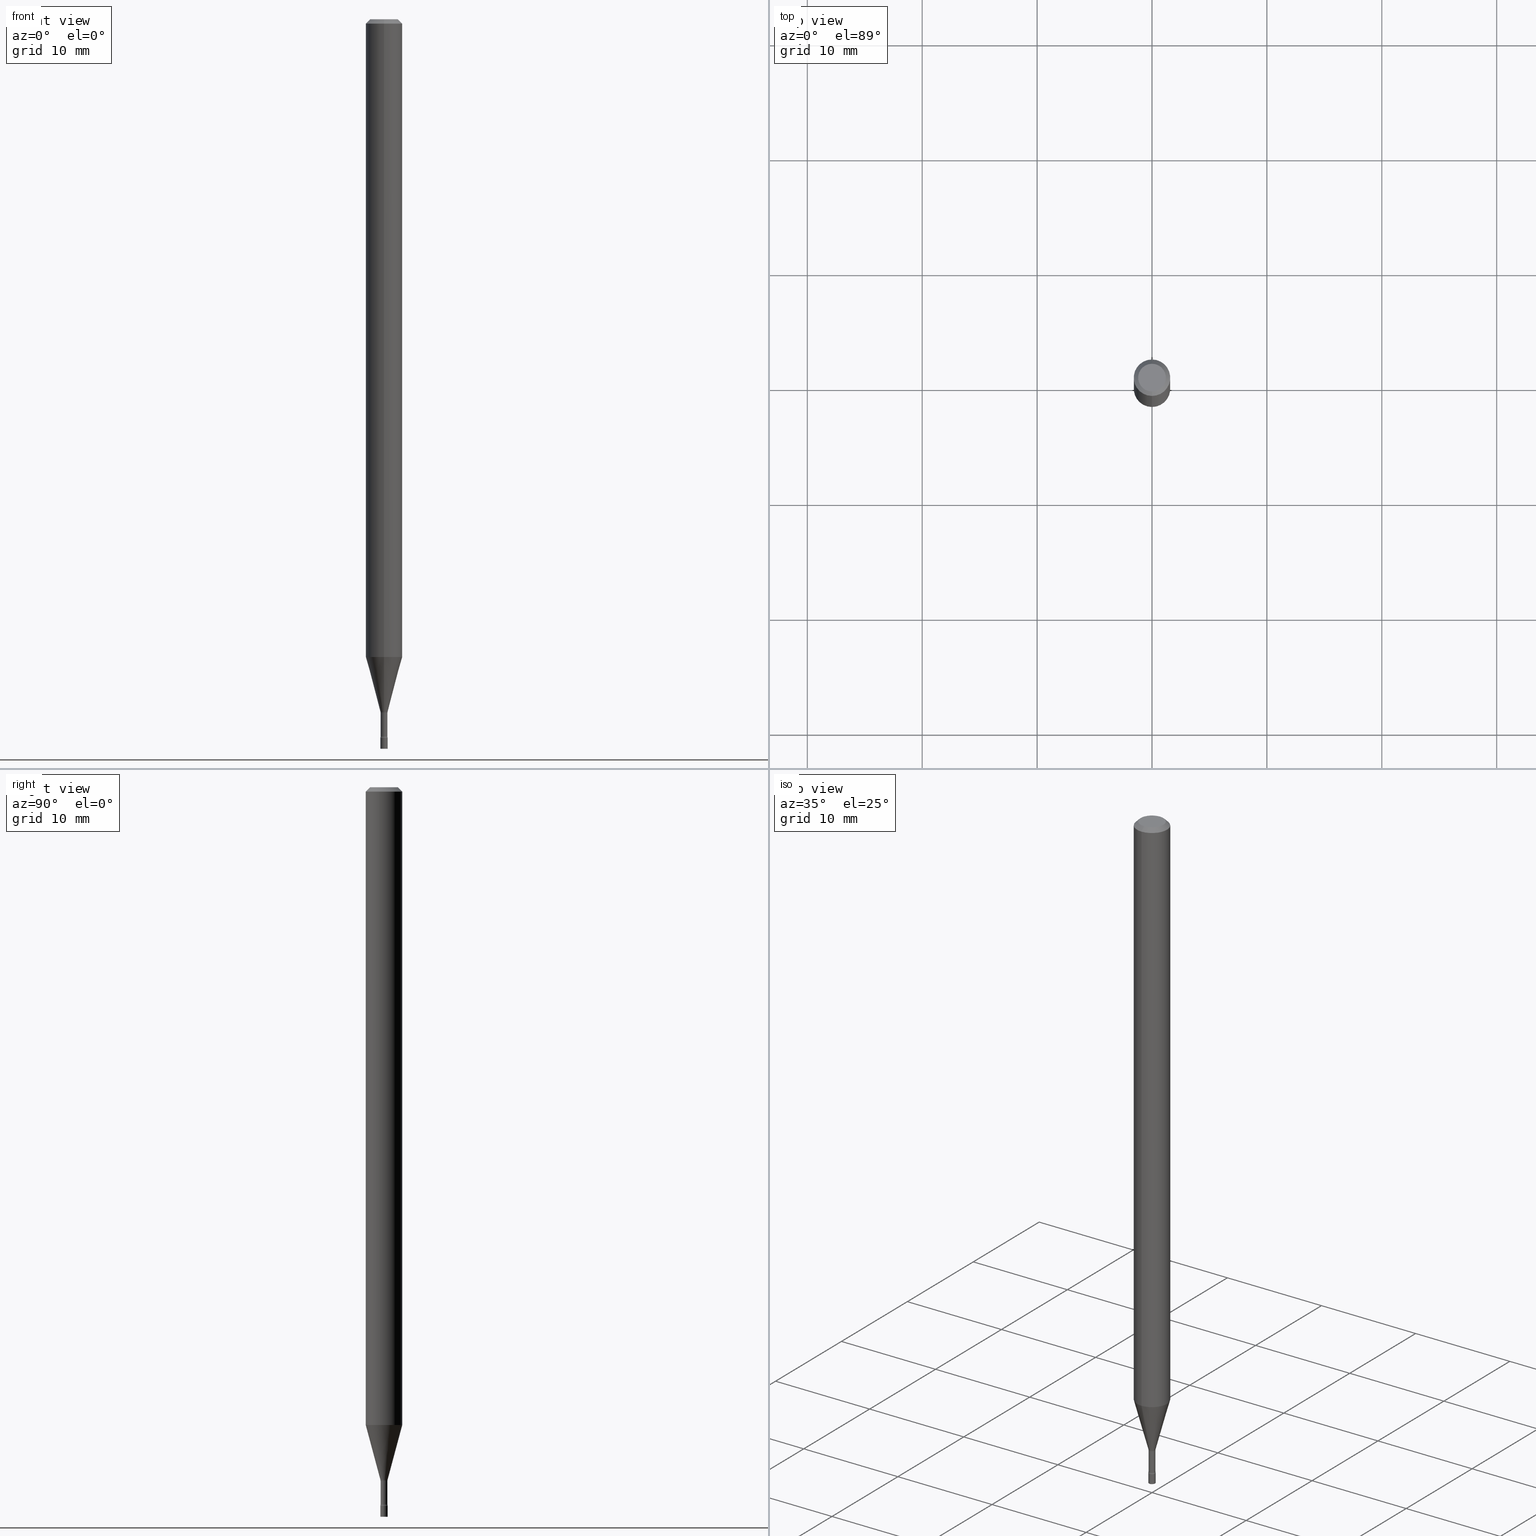
[diagram: canonical four-view strip — front | top / right | iso, engineering-drawing reading convention]
A machine part, canonical four-view strip (front | top / right | iso — engineering-drawing reading convention). The complete STEP part file that produces these views, byte-faithful:
ISO-10303-21;
HEADER;
FILE_DESCRIPTION (( 'STEP AP203' ),
    '1' );
FILE_NAME ('09621.STEP',
    '2024-03-09T00:03:52',
    ( '' ),
    ( '' ),
    'SwSTEP 2.0',
    'SolidWorks 2023',
    '' );
FILE_SCHEMA (( 'CONFIG_CONTROL_DESIGN' ));
ENDSEC;

DATA;
#1 = CYLINDRICAL_SURFACE ( 'NONE', #244, 0.06250000000000000000 ) ;
#2 = CIRCLE ( 'NONE', #386, 0.01250000000000000069 ) ;
#3 = VERTEX_POINT ( 'NONE', #420 ) ;
#4 = ORIENTED_EDGE ( 'NONE', *, *, #240, .F. ) ;
#5 = AXIS2_PLACEMENT_3D ( 'NONE', #415, #52, #8 ) ;
#6 = FACE_OUTER_BOUND ( 'NONE', #76, .T. ) ;
#7 = ORIENTED_EDGE ( 'NONE', *, *, #397, .F. ) ;
#8 = DIRECTION ( 'NONE',  ( 1.000000000000000000, -6.982962677686267499E-15, 4.876176775795936353E-29 ) ) ;
#9 = DIRECTION ( 'NONE',  ( -2.445524548783828743E-29, 3.491401512269146579E-15, 1.000000000000000000 ) ) ;
#10 = VERTEX_POINT ( 'NONE', #378 ) ;
#11 = DIRECTION ( 'NONE',  ( -2.445524548783828743E-29, 3.491401512269146579E-15, 1.000000000000000000 ) ) ;
#12 = CIRCLE ( 'NONE', #439, 0.01250000000000000069 ) ;
#13 = DIRECTION ( 'NONE',  ( -2.445524548783828743E-29, 3.491401512269146579E-15, 1.000000000000000000 ) ) ;
#14 = EDGE_CURVE ( 'NONE', #155, #464, #72, .T. ) ;
#15 = ORIENTED_EDGE ( 'NONE', *, *, #364, .T. ) ;
#16 = DIRECTION ( 'NONE',  ( -6.982962677686265133E-15, -1.000000000000000000, 0.000000000000000000 ) ) ;
#17 = EDGE_CURVE ( 'NONE', #3, #217, #97, .T. ) ;
#18 = DIRECTION ( 'NONE',  ( 6.982962677686265922E-15, 1.000000000000000000, -3.491401512269146579E-15 ) ) ;
#19 = PLANE ( 'NONE',  #187 ) ;
#20 = AXIS2_PLACEMENT_3D ( 'NONE', #163, #483, #56 ) ;
#21 = CC_DESIGN_APPROVAL ( #343, ( #371 ) ) ;
#22 = CC_DESIGN_SECURITY_CLASSIFICATION ( #371, ( #215 ) ) ;
#23 = DIRECTION ( 'NONE',  ( -2.445524548783828743E-29, 3.491401512269146579E-15, 1.000000000000000000 ) ) ;
#24 = CARTESIAN_POINT ( 'NONE',  ( -4.364351673553912750E-16, -0.06250000000000005551, -0.01499999999999981209 ) ) ;
#25 = EDGE_CURVE ( 'NONE', #241, #474, #254, .T. ) ;
#26 = ORIENTED_EDGE ( 'NONE', *, *, #348, .T. ) ;
#27 = AXIS2_PLACEMENT_3D ( 'NONE', #226, #135, #259 ) ;
#28 = PERSON_AND_ORGANIZATION ( #121, #477 ) ;
#29 = CIRCLE ( 'NONE', #394, 0.01500000000000002373 ) ;
#30 = CALENDAR_DATE ( 2024, 8, 3 ) ;
#31 = DIRECTION ( 'NONE',  ( 1.000000000000000000, -6.982962677686216223E-15, 0.000000000000000000 ) ) ;
#32 = CARTESIAN_POINT ( 'NONE',  ( 5.812950194582974720E-29, -8.298973367576783599E-15, -2.376974787463811190 ) ) ;
#33 = EDGE_CURVE ( 'NONE', #474, #241, #351, .T. ) ;
#34 = DIRECTION ( 'NONE',  ( -2.445524548783828743E-29, 3.491401512269146579E-15, 1.000000000000000000 ) ) ;
#35 = ADVANCED_FACE ( 'NONE', ( #245 ), #283, .T. ) ;
#36 = DIRECTION ( 'NONE',  ( 0.000000000000000000, 0.000000000000000000, 1.000000000000000000 ) ) ;
#37 = VECTOR ( 'NONE', #39, 39.37007874015748143 ) ;
#38 = CC_DESIGN_APPROVAL ( #159, ( #459 ) ) ;
#39 = DIRECTION ( 'NONE',  ( 4.937700262164548042E-15, 0.7071067811865451302, -0.7071067811865499042 ) ) ;
#40 = COORDINATED_UNIVERSAL_TIME_OFFSET ( 5, 0, .BEHIND. ) ;
#41 = EDGE_CURVE ( 'NONE', #474, #155, #330, .T. ) ;
#42 = ORIENTED_EDGE ( 'NONE', *, *, #504, .T. ) ;
#43 = ORIENTED_EDGE ( 'NONE', *, *, #129, .T. ) ;
#44 = FACE_OUTER_BOUND ( 'NONE', #306, .T. ) ;
#45 = ORIENTED_EDGE ( 'NONE', *, *, #320, .F. ) ;
#46 = DATE_AND_TIME ( #485, #507 ) ;
#47 = AXIS2_PLACEMENT_3D ( 'NONE', #168, #453, #18 ) ;
#48 = CONICAL_SURFACE ( 'NONE', #470, 0.01226111260566398187, 0.2617993877991499629 ) ;
#49 = AXIS2_PLACEMENT_3D ( 'NONE', #375, #344, #60 ) ;
#50 = DIMENSIONAL_EXPONENTS ( 1.000000000000000000, 0.000000000000000000, 0.000000000000000000, 0.000000000000000000, 0.000000000000000000, 0.000000000000000000, 0.000000000000000000 ) ;
#51 = DIRECTION ( 'NONE',  ( -2.445524548783828743E-29, 3.491401512269146579E-15, 1.000000000000000000 ) ) ;
#52 = DIRECTION ( 'NONE',  ( -2.445468806185136597E-29, 3.491481338843145583E-15, 1.000000000000000000 ) ) ;
#53 = CARTESIAN_POINT ( 'NONE',  ( 5.803455969655609935E-29, -8.285418749494658731E-15, -2.373092501787273267 ) ) ;
#54 = SHAPE_DEFINITION_REPRESENTATION ( #410, #492 ) ;
#55 = ADVANCED_FACE ( 'NONE', ( #209 ), #350, .F. ) ;
#56 = DIRECTION ( 'NONE',  ( -6.982962677686265133E-15, -1.000000000000000000, 0.000000000000000000 ) ) ;
#57 = EDGE_LOOP ( 'NONE', ( #201, #43 ) ) ;
#58 = DIRECTION ( 'NONE',  ( -2.445524548783828463E-29, 3.491401512269146579E-15, 1.000000000000000000 ) ) ;
#59 = VECTOR ( 'NONE', #357, 39.37007874015748143 ) ;
#60 = DIRECTION ( 'NONE',  ( -6.982962677686265133E-15, -1.000000000000000000, 0.000000000000000000 ) ) ;
#61 = VERTEX_POINT ( 'NONE', #88 ) ;
#62 = DIRECTION ( 'NONE',  ( -1.000000000000000000, 6.982962677686265922E-15, -4.883557194083112340E-29 ) ) ;
#63 = CARTESIAN_POINT ( 'NONE',  ( 6.009290239977977822E-29, -8.579673835752435391E-15, -2.457316251501201698 ) ) ;
#64 = CARTESIAN_POINT ( 'NONE',  ( -8.728703347101810928E-17, -0.01250000000000859104, -2.462000000000000188 ) ) ;
#65 = AXIS2_PLACEMENT_3D ( 'NONE', #419, #13, #345 ) ;
#66 = LINE ( 'NONE', #511, #37 ) ;
#67 = DIRECTION ( 'NONE',  ( 1.000000000000000000, -7.105427357601001070E-15, 4.926314530948498868E-29 ) ) ;
#68 = CIRCLE ( 'NONE', #256, 0.06250000000000000000 ) ;
#69 = TOROIDAL_SURFACE ( 'NONE', #27, 0.02675000000000003764, 0.01499999999999998904 ) ;
#70 = ORIENTED_EDGE ( 'NONE', *, *, #320, .T. ) ;
#71 = CARTESIAN_POINT ( 'NONE',  ( 8.615330671097242400E-17, 0.01174999999999146866, -2.457316251501201254 ) ) ;
#72 = CIRCLE ( 'NONE', #49, 0.01250000000000000069 ) ;
#73 = DIRECTION ( 'NONE',  ( -6.982962677686265922E-15, -1.000000000000000000, 3.483106191921935554E-15 ) ) ;
#74 = EDGE_CURVE ( 'NONE', #238, #426, #68, .T. ) ;
#75 = CARTESIAN_POINT ( 'NONE',  ( 0.000000000000000000, 0.000000000000000000, 0.000000000000000000 ) ) ;
#76 = EDGE_LOOP ( 'NONE', ( #478, #489, #197, #436 ) ) ;
#77 = APPLICATION_PROTOCOL_DEFINITION ( 'international standard', 'config_control_design', 1994, #390 ) ;
#78 = ADVANCED_FACE ( 'NONE', ( #137 ), #303, .T. ) ;
#79 = VECTOR ( 'NONE', #404, 39.37007874015748143 ) ;
#80 =( LENGTH_UNIT ( ) NAMED_UNIT ( * ) SI_UNIT ( $, .METRE. ) );
#81 = VERTEX_POINT ( 'NONE', #297 ) ;
#82 = DIRECTION ( 'NONE',  ( -6.982962677686266711E-15, -1.000000000000000000, 3.491401512269146579E-15 ) ) ;
#83 = APPROVAL_STATUS ( 'not_yet_approved' ) ;
#84 = AXIS2_PLACEMENT_3D ( 'NONE', #120, #342, #175 ) ;
#85 = ORIENTED_EDGE ( 'NONE', *, *, #108, .F. ) ;
#86 = EDGE_CURVE ( 'NONE', #10, #405, #29, .T. ) ;
#87 = EDGE_LOOP ( 'NONE', ( #452, #42, #333, #341 ) ) ;
#88 = CARTESIAN_POINT ( 'NONE',  ( -0.01250000000000000069, -8.573547359699832444E-15, -2.500000000000000000 ) ) ;
#89 = DIRECTION ( 'NONE',  ( -6.982962677686265133E-15, -1.000000000000000000, 0.000000000000000000 ) ) ;
#90 = EDGE_CURVE ( 'NONE', #237, #61, #302, .T. ) ;
#91 = CYLINDRICAL_SURFACE ( 'NONE', #65, 0.01175000000000002431 ) ;
#92 = EDGE_LOOP ( 'NONE', ( #354, #85, #293, #70 ) ) ;
#93 = EDGE_CURVE ( 'NONE', #123, #405, #454, .T. ) ;
#94 = PRODUCT ( '09621', '09621', '', ( #475 ) ) ;
#95 = AXIS2_PLACEMENT_3D ( 'NONE', #431, #113, #319 ) ;
#96 = DIRECTION ( 'NONE',  ( -2.445524548783828743E-29, 3.491401512269146579E-15, 1.000000000000000000 ) ) ;
#97 = CIRCLE ( 'NONE', #202, 0.01250000000000000069 ) ;
#98 = CARTESIAN_POINT ( 'NONE',  ( -1.867942516280494826E-16, -0.02675000000000829839, -2.376974787463811190 ) ) ;
#99 = DIRECTION ( 'NONE',  ( -6.982962677686265922E-15, -1.000000000000000000, 4.370956789862821150E-15 ) ) ;
#100 = MANIFOLD_SOLID_BREP ( 'Body-Move/Copy2[2]', #206 ) ;
#101 = TOROIDAL_SURFACE ( 'NONE', #255, 0.02675000000000003764, 0.01499999999999998904 ) ;
#102 = CARTESIAN_POINT ( 'NONE',  ( 1.900701818158849005E-16, 0.02674999999999170056, -2.376974787463811190 ) ) ;
#103 = ADVANCED_FACE ( 'NONE', ( #253 ), #111, .T. ) ;
#104 = PERSON_AND_ORGANIZATION ( #121, #477 ) ;
#105 = EDGE_LOOP ( 'NONE', ( #337, #15, #406, #385 ) ) ;
#106 = DATE_TIME_ROLE ( 'creation_date' ) ;
#107 = CARTESIAN_POINT ( 'NONE',  ( 6.113672015462842613E-29, -8.728703347107864943E-15, -2.500000000000000000 ) ) ;
#108 = EDGE_CURVE ( 'NONE', #440, #488, #403, .T. ) ;
#109 = DIRECTION ( 'NONE',  ( -2.445524548783828463E-29, 3.491401512269146579E-15, 1.000000000000000000 ) ) ;
#110 = DESIGN_CONTEXT ( 'detailed design', #390, 'design' ) ;
#111 = CONICAL_SURFACE ( 'NONE', #179, 0.01226111260566398187, 0.2617993877991499629 ) ;
#112 = VECTOR ( 'NONE', #141, 39.37007874015748143 ) ;
#113 = DIRECTION ( 'NONE',  ( -2.445524548783828743E-29, 3.491401512269146579E-15, 1.000000000000000000 ) ) ;
#114 = FACE_OUTER_BOUND ( 'NONE', #181, .T. ) ;
#115 = ORIENTED_EDGE ( 'NONE', *, *, #129, .F. ) ;
#116 =( NAMED_UNIT ( * ) SI_UNIT ( $, .STERADIAN. ) SOLID_ANGLE_UNIT ( ) );
#117 = LINE ( 'NONE', #280, #79 ) ;
#118 = EDGE_LOOP ( 'NONE', ( #324, #139, #367, #442 ) ) ;
#119 = CIRCLE ( 'NONE', #136, 0.01226111260566398187 ) ;
#120 = CARTESIAN_POINT ( 'NONE',  ( 5.812817695831295351E-29, -8.299163113330549419E-15, -2.376974787463811190 ) ) ;
#121 = PERSON ( 'UNSPECIFIED', 'UNSPECIFIED', 'UNSPECIFIED', ('UNSPECIFIED'), ('UNSPECIFIED'), ('UNSPECIFIED') ) ;
#122 = PERSON_AND_ORGANIZATION ( #121, #477 ) ;
#123 = VERTEX_POINT ( 'NONE', #347 ) ;
#124 = CARTESIAN_POINT ( 'NONE',  ( 6.020744200827806517E-29, -8.596027056231825938E-15, -2.462000000000000188 ) ) ;
#125 = FACE_OUTER_BOUND ( 'NONE', #105, .T. ) ;
#126 = ADVANCED_FACE ( 'NONE', ( #6 ), #164, .T. ) ;
#127 = FACE_OUTER_BOUND ( 'NONE', #495, .T. ) ;
#128 = APPROVAL_PERSON_ORGANIZATION ( #104, #376, #274 ) ;
#129 = EDGE_CURVE ( 'NONE', #217, #3, #12, .T. ) ;
#130 = ORIENTED_EDGE ( 'NONE', *, *, #90, .F. ) ;
#131 = ORIENTED_EDGE ( 'NONE', *, *, #14, .F. ) ;
#132 = LINE ( 'NONE', #296, #497 ) ;
#133 = CARTESIAN_POINT ( 'NONE',  ( 6.009427217171644707E-29, -8.579477676614845561E-15, -2.457316251501201254 ) ) ;
#134 = DIRECTION ( 'NONE',  ( -6.982962677686265133E-15, -1.000000000000000000, 0.000000000000000000 ) ) ;
#135 = DIRECTION ( 'NONE',  ( -2.445524548783828743E-29, 3.491401512269146579E-15, 1.000000000000000000 ) ) ;
#136 = AXIS2_PLACEMENT_3D ( 'NONE', #372, #380, #211 ) ;
#137 = FACE_OUTER_BOUND ( 'NONE', #340, .T. ) ;
#138 = FACE_OUTER_BOUND ( 'NONE', #57, .T. ) ;
#139 = ORIENTED_EDGE ( 'NONE', *, *, #154, .F. ) ;
#140 = DIRECTION ( 'NONE',  ( -6.982962677686265133E-15, -1.000000000000000000, 0.000000000000000000 ) ) ;
#141 = DIRECTION ( 'NONE',  ( -1.807323732225328167E-15, -0.2588190451025179084, 0.9659258262890690894 ) ) ;
#142 = ADVANCED_FACE ( 'NONE', ( #208 ), #101, .F. ) ;
#143 =( GEOMETRIC_REPRESENTATION_CONTEXT ( 3 ) GLOBAL_UNCERTAINTY_ASSIGNED_CONTEXT ( ( #317 ) ) GLOBAL_UNIT_ASSIGNED_CONTEXT ( ( #494, #196, #116 ) ) REPRESENTATION_CONTEXT ( 'NONE', 'WORKASPACE' ) );
#144 = CC_DESIGN_APPROVAL ( #376, ( #215 ) ) ;
#145 = DATE_AND_TIME ( #506, #266 ) ;
#146 = ADVANCED_FACE ( 'NONE', ( #178 ), #19, .F. ) ;
#147 = ORIENTED_EDGE ( 'NONE', *, *, #33, .T. ) ;
#148 = CARTESIAN_POINT ( 'NONE',  ( 5.803455969655609935E-29, -8.285418749494658731E-15, -2.373092501787273267 ) ) ;
#149 = PERSON_AND_ORGANIZATION ( #121, #477 ) ;
#150 = CARTESIAN_POINT ( 'NONE',  ( 3.668286823175750261E-31, -5.237102268403730666E-17, -0.01500000000000003067 ) ) ;
#151 = CARTESIAN_POINT ( 'NONE',  ( 8.728703347113853383E-17, 0.01249999999999140514, -2.462000000000000188 ) ) ;
#152 = AXIS2_PLACEMENT_3D ( 'NONE', #102, #519, #243 ) ;
#153 = VERTEX_POINT ( 'NONE', #258 ) ;
#154 = EDGE_CURVE ( 'NONE', #10, #81, #282, .T. ) ;
#155 = VERTEX_POINT ( 'NONE', #64 ) ;
#156 = ORIENTED_EDGE ( 'NONE', *, *, #276, .T. ) ;
#157 = COORDINATED_UNIVERSAL_TIME_OFFSET ( 5, 0, .BEHIND. ) ;
#158 = DIRECTION ( 'NONE',  ( -2.445468806185136597E-29, 3.491481338843145583E-15, 1.000000000000000000 ) ) ;
#159 = APPROVAL ( #325, 'UNSPECIFIED' ) ;
#160 = ORIENTED_EDGE ( 'NONE', *, *, #90, .T. ) ;
#161 = EDGE_LOOP ( 'NONE', ( #131, #285 ) ) ;
#162 = AXIS2_PLACEMENT_3D ( 'NONE', #287, #221, #335 ) ;
#163 = CARTESIAN_POINT ( 'NONE',  ( 6.020881439105786871E-29, -8.595830523206639704E-15, -2.462000000000000188 ) ) ;
#164 = CYLINDRICAL_SURFACE ( 'NONE', #413, 0.01175000000000002431 ) ;
#165 = EDGE_CURVE ( 'NONE', #207, #153, #180, .T. ) ;
#166 = CARTESIAN_POINT ( 'NONE',  ( 0.000000000000000000, 0.000000000000000000, 0.000000000000000000 ) ) ;
#167 = ORIENTED_EDGE ( 'NONE', *, *, #224, .F. ) ;
#168 = CARTESIAN_POINT ( 'NONE',  ( 3.316907271900976096E-16, 0.04749999999999999362, -1.803004231778514264E-16 ) ) ;
#169 = CARTESIAN_POINT ( 'NONE',  ( 8.881784197007265416E-17, 0.01249999999999139820, -2.462000000000000188 ) ) ;
#170 = CIRCLE ( 'NONE', #272, 0.06250000000000000000 ) ;
#171 = APPROVAL_PERSON_ORGANIZATION ( #28, #159, #236 ) ;
#172 = AXIS2_PLACEMENT_3D ( 'NONE', #249, #210, #174 ) ;
#173 = EDGE_LOOP ( 'NONE', ( #160, #417, #212, #284 ) ) ;
#174 = DIRECTION ( 'NONE',  ( -6.982962677686266711E-15, -1.000000000000000000, 3.491401512269146579E-15 ) ) ;
#175 = DIRECTION ( 'NONE',  ( -6.982962677686266711E-15, -1.000000000000000000, 3.491401512269146185E-15 ) ) ;
#176 = CARTESIAN_POINT ( 'NONE',  ( 6.020744200827806517E-29, -8.596027056231825938E-15, -2.462000000000000188 ) ) ;
#177 = CARTESIAN_POINT ( 'NONE',  ( 3.668286823175750261E-31, -5.237102268403730666E-17, -0.01500000000000003067 ) ) ;
#178 = FACE_OUTER_BOUND ( 'NONE', #161, .T. ) ;
#179 = AXIS2_PLACEMENT_3D ( 'NONE', #53, #11, #89 ) ;
#180 = CIRCLE ( 'NONE', #476, 0.06250000000000000000 ) ;
#181 = EDGE_LOOP ( 'NONE', ( #277, #257, #227, #517 ) ) ;
#182 = EDGE_CURVE ( 'NONE', #405, #123, #229, .T. ) ;
#183 = DIRECTION ( 'NONE',  ( -2.445524548783828743E-29, 3.491401512269146579E-15, 1.000000000000000000 ) ) ;
#184 = CARTESIAN_POINT ( 'NONE',  ( -8.204981146281378620E-17, -0.01175000000000002431, 4.102396776916255750E-17 ) ) ;
#185 = CC_DESIGN_PERSON_AND_ORGANIZATION_ASSIGNMENT ( #203, #336, ( #371 ) ) ;
#186 = AXIS2_PLACEMENT_3D ( 'NONE', #382, #456, #450 ) ;
#187 = AXIS2_PLACEMENT_3D ( 'NONE', #151, #503, #231 ) ;
#188 = AXIS2_PLACEMENT_3D ( 'NONE', #177, #499, #493 ) ;
#189 = ORIENTED_EDGE ( 'NONE', *, *, #260, .T. ) ;
#190 = PERSON_AND_ORGANIZATION ( #121, #477 ) ;
#191 = CARTESIAN_POINT ( 'NONE',  ( 0.000000000000000000, 0.000000000000000000, 0.000000000000000000 ) ) ;
#192 = FACE_OUTER_BOUND ( 'NONE', #438, .T. ) ;
#193 = DATE_AND_TIME ( #30, #205 ) ;
#194 = CARTESIAN_POINT ( 'NONE',  ( 0.01250000000000000069, -8.728703347107834621E-17, 6.095220969744920617E-31 ) ) ;
#195 = DIRECTION ( 'NONE',  ( -2.445524548783828743E-29, 3.491401512269146579E-15, 1.000000000000000000 ) ) ;
#196 =( NAMED_UNIT ( * ) PLANE_ANGLE_UNIT ( ) SI_UNIT ( $, .RADIAN. ) );
#197 = ORIENTED_EDGE ( 'NONE', *, *, #358, .T. ) ;
#198 = CARTESIAN_POINT ( 'NONE',  ( 4.440892098501163573E-16, 0.06249999999999995143, -0.01500000000000024751 ) ) ;
#199 = ORIENTED_EDGE ( 'NONE', *, *, #427, .T. ) ;
#200 = ORIENTED_EDGE ( 'NONE', *, *, #339, .F. ) ;
#201 = ORIENTED_EDGE ( 'NONE', *, *, #17, .T. ) ;
#202 = AXIS2_PLACEMENT_3D ( 'NONE', #176, #216, #346 ) ;
#203 = PERSON_AND_ORGANIZATION ( #121, #477 ) ;
#204 = CIRCLE ( 'NONE', #152, 0.01500000000000002373 ) ;
#205 = LOCAL_TIME ( 19, 3, 52.00000000000000000, #396 ) ;
#206 = CLOSED_SHELL ( 'NONE', ( #482, #515, #373, #35, #435, #416, #103, #233, #262, #55, #146, #142, #126, #299 ) ) ;
#207 = VERTEX_POINT ( 'NONE', #218 ) ;
#208 = FACE_OUTER_BOUND ( 'NONE', #471, .T. ) ;
#209 = FACE_OUTER_BOUND ( 'NONE', #219, .T. ) ;
#210 = DIRECTION ( 'NONE',  ( -2.445524548783828743E-29, 3.491401512269146579E-15, 1.000000000000000000 ) ) ;
#211 = DIRECTION ( 'NONE',  ( -6.982962677686265133E-15, -1.000000000000000000, 0.000000000000000000 ) ) ;
#212 = ORIENTED_EDGE ( 'NONE', *, *, #17, .F. ) ;
#213 = CARTESIAN_POINT ( 'NONE',  ( 8.348877145181193227E-17, 0.01175000000000002431, -4.102396776916255750E-17 ) ) ;
#214 = AXIS2_PLACEMENT_3D ( 'NONE', #263, #183, #140 ) ;
#215 = PRODUCT_DEFINITION_FORMATION_WITH_SPECIFIED_SOURCE ( 'ANY', '', #94, .NOT_KNOWN. ) ;
#216 = DIRECTION ( 'NONE',  ( -2.445468806185136597E-29, 3.491481338843145583E-15, 1.000000000000000000 ) ) ;
#217 = VERTEX_POINT ( 'NONE', #356 ) ;
#218 = CARTESIAN_POINT ( 'NONE',  ( 4.440892098501159629E-16, 0.06249999999999236722, -2.185598421515880130 ) ) ;
#219 = EDGE_LOOP ( 'NONE', ( #313, #392 ) ) ;
#220 = DIRECTION ( 'NONE',  ( -6.982962677686266711E-15, -1.000000000000000000, 3.491401512269146185E-15 ) ) ;
#221 = DIRECTION ( 'NONE',  ( -2.445468806185136597E-29, 3.491481338843145583E-15, 1.000000000000000000 ) ) ;
#222 = AXIS2_PLACEMENT_3D ( 'NONE', #191, #267, #268 ) ;
#223 = DIRECTION ( 'NONE',  ( 1.000000000000000000, -6.982962677686265922E-15, 4.876176775795935793E-29 ) ) ;
#224 = EDGE_CURVE ( 'NONE', #207, #426, #309, .T. ) ;
#225 = LINE ( 'NONE', #501, #112 ) ;
#226 = CARTESIAN_POINT ( 'NONE',  ( 6.009290239977977822E-29, -8.579673835752435391E-15, -2.457316251501201698 ) ) ;
#227 = ORIENTED_EDGE ( 'NONE', *, *, #457, .T. ) ;
#228 = AXIS2_PLACEMENT_3D ( 'NONE', #312, #500, #295 ) ;
#229 = CIRCLE ( 'NONE', #352, 0.01175000000000000176 ) ;
#230 = APPROVAL_STATUS ( 'not_yet_approved' ) ;
#231 = DIRECTION ( 'NONE',  ( -6.982962677686265922E-15, -1.000000000000000000, 3.491401512269146579E-15 ) ) ;
#232 = EDGE_LOOP ( 'NONE', ( #369, #400, #448, #281 ) ) ;
#233 = ADVANCED_FACE ( 'NONE', ( #44 ), #300, .T. ) ;
#234 = ORIENTED_EDGE ( 'NONE', *, *, #33, .F. ) ;
#235 = PRODUCT_RELATED_PRODUCT_CATEGORY ( 'detail', '', ( #94 ) ) ;
#236 = APPROVAL_ROLE ( '' ) ;
#237 = VERTEX_POINT ( 'NONE', #315 ) ;
#238 = VERTEX_POINT ( 'NONE', #24 ) ;
#239 = CARTESIAN_POINT ( 'NONE',  ( -8.204981146275385742E-17, -0.01175000000000862854, -2.457316251501201254 ) ) ;
#240 = EDGE_CURVE ( 'NONE', #153, #207, #365, .T. ) ;
#241 = VERTEX_POINT ( 'NONE', #71 ) ;
#242 = CIRCLE ( 'NONE', #20, 0.01250000000000000069 ) ;
#243 = DIRECTION ( 'NONE',  ( 7.105427357601001859E-15, 1.000000000000000000, 0.000000000000000000 ) ) ;
#244 = AXIS2_PLACEMENT_3D ( 'NONE', #166, #9, #486 ) ;
#245 = FACE_OUTER_BOUND ( 'NONE', #87, .T. ) ;
#246 = DATE_AND_TIME ( #518, #414 ) ;
#247 = CARTESIAN_POINT ( 'NONE',  ( 8.728703347113945828E-17, 0.01249999999999127157, -2.500000000000000000 ) ) ;
#248 = CARTESIAN_POINT ( 'NONE',  ( 3.668286823175750261E-31, -5.237102268403730666E-17, -0.01500000000000003067 ) ) ;
#249 = CARTESIAN_POINT ( 'NONE',  ( 7.071895182315478193E-46, -1.009633109036832983E-31, -2.891770269013396492E-17 ) ) ;
#250 = APPROVAL_DATE_TIME ( #246, #343 ) ;
#251 = CARTESIAN_POINT ( 'NONE',  ( 3.840629472727447874E-16, 0.04749999999999999362, -1.947592745229184119E-16 ) ) ;
#252 = ORIENTED_EDGE ( 'NONE', *, *, #165, .F. ) ;
#253 = FACE_OUTER_BOUND ( 'NONE', #289, .T. ) ;
#254 = CIRCLE ( 'NONE', #496, 0.01175000000000004860 ) ;
#255 = AXIS2_PLACEMENT_3D ( 'NONE', #63, #34, #220 ) ;
#256 = AXIS2_PLACEMENT_3D ( 'NONE', #248, #96, #423 ) ;
#257 = ORIENTED_EDGE ( 'NONE', *, *, #339, .T. ) ;
#258 = CARTESIAN_POINT ( 'NONE',  ( -4.364351673553382734E-16, -0.06250000000000764666, -2.185598421515879686 ) ) ;
#259 = DIRECTION ( 'NONE',  ( -6.982962677686266711E-15, -1.000000000000000000, 3.491401512269146185E-15 ) ) ;
#260 = EDGE_CURVE ( 'NONE', #61, #237, #2, .T. ) ;
#261 = ORIENTED_EDGE ( 'NONE', *, *, #182, .F. ) ;
#262 = ADVANCED_FACE ( 'NONE', ( #399 ), #264, .T. ) ;
#263 = CARTESIAN_POINT ( 'NONE',  ( 5.803455969655609935E-29, -8.285418749494658731E-15, -2.373092501787273267 ) ) ;
#264 = CONICAL_SURFACE ( 'NONE', #461, 0.06250000000000000000, 0.7853981633974483900 ) ;
#265 = DIRECTION ( 'NONE',  ( -2.445468806185136877E-29, 3.491481338843145188E-15, 1.000000000000000000 ) ) ;
#266 = LOCAL_TIME ( 19, 3, 52.00000000000000000, #40 ) ;
#267 = DIRECTION ( 'NONE',  ( -2.445524548783828743E-29, 3.491401512269146579E-15, 1.000000000000000000 ) ) ;
#268 = DIRECTION ( 'NONE',  ( -6.982962677686265922E-15, -1.000000000000000000, 3.491401512269146579E-15 ) ) ;
#269 = ORIENTED_EDGE ( 'NONE', *, *, #358, .F. ) ;
#270 = LINE ( 'NONE', #194, #395 ) ;
#271 = AXIS2_PLACEMENT_3D ( 'NONE', #491, #383, #134 ) ;
#272 = AXIS2_PLACEMENT_3D ( 'NONE', #150, #275, #73 ) ;
#273 = MANIFOLD_SOLID_BREP ( 'Body-Move/Copy2[1]', #480 ) ;
#274 = APPROVAL_ROLE ( '' ) ;
#275 = DIRECTION ( 'NONE',  ( -2.445524548783828743E-29, 3.491401512269146579E-15, 1.000000000000000000 ) ) ;
#276 = EDGE_CURVE ( 'NONE', #237, #3, #270, .T. ) ;
#277 = ORIENTED_EDGE ( 'NONE', *, *, #25, .F. ) ;
#278 = CC_DESIGN_PERSON_AND_ORGANIZATION_ASSIGNMENT ( #149, #318, ( #215 ) ) ;
#279 = ORIENTED_EDGE ( 'NONE', *, *, #165, .T. ) ;
#280 = CARTESIAN_POINT ( 'NONE',  ( -4.364351673553916201E-16, -0.06250000000000000000, 2.182125945168216612E-16 ) ) ;
#281 = ORIENTED_EDGE ( 'NONE', *, *, #427, .F. ) ;
#282 = CIRCLE ( 'NONE', #214, 0.01226111260566398187 ) ;
#283 = CONICAL_SURFACE ( 'NONE', #188, 0.06250000000000000000, 0.7853981633974483900 ) ;
#284 = ORIENTED_EDGE ( 'NONE', *, *, #276, .F. ) ;
#285 = ORIENTED_EDGE ( 'NONE', *, *, #457, .F. ) ;
#286 = CARTESIAN_POINT ( 'NONE',  ( 0.000000000000000000, 0.000000000000000000, 0.000000000000000000 ) ) ;
#287 = CARTESIAN_POINT ( 'NONE',  ( 6.113672015462842613E-29, -8.728703347107864943E-15, -2.500000000000000000 ) ) ;
#288 = LINE ( 'NONE', #213, #379 ) ;
#289 = EDGE_LOOP ( 'NONE', ( #433, #298, #26, #252 ) ) ;
#290 = CIRCLE ( 'NONE', #301, 0.01499999999999999424 ) ;
#291 = AXIS2_PLACEMENT_3D ( 'NONE', #75, #36, #366 ) ;
#292 = PLANE ( 'NONE',  #401 ) ;
#293 = ORIENTED_EDGE ( 'NONE', *, *, #411, .T. ) ;
#294 = DIRECTION ( 'NONE',  ( -2.445524548783828743E-29, 3.491401512269146579E-15, 1.000000000000000000 ) ) ;
#295 = DIRECTION ( 'NONE',  ( -6.982962677686265922E-15, -1.000000000000000000, 0.000000000000000000 ) ) ;
#296 = CARTESIAN_POINT ( 'NONE',  ( -4.287811248607203282E-16, -0.06250000000000005551, -0.01499999999999981209 ) ) ;
#297 = CARTESIAN_POINT ( 'NONE',  ( 2.656048273965428500E-16, 0.01226111260565569683, -2.373092501787273267 ) ) ;
#298 = ORIENTED_EDGE ( 'NONE', *, *, #463, .T. ) ;
#299 = ADVANCED_FACE ( 'NONE', ( #513 ), #487, .F. ) ;
#300 = CYLINDRICAL_SURFACE ( 'NONE', #222, 0.06250000000000000000 ) ;
#301 = AXIS2_PLACEMENT_3D ( 'NONE', #391, #67, #355 ) ;
#302 = CIRCLE ( 'NONE', #162, 0.01250000000000000069 ) ;
#303 = CYLINDRICAL_SURFACE ( 'NONE', #5, 0.01250000000000000069 ) ;
#304 = CC_DESIGN_PERSON_AND_ORGANIZATION_ASSIGNMENT ( #190, #516, ( #94 ) ) ;
#305 = LINE ( 'NONE', #308, #514 ) ;
#306 = EDGE_LOOP ( 'NONE', ( #167, #279, #199, #45 ) ) ;
#307 = LENGTH_MEASURE_WITH_UNIT ( LENGTH_MEASURE( 0.02539999999999999897 ), #80 );
#308 = CARTESIAN_POINT ( 'NONE',  ( -0.01250000000000000069, 8.881784197001252816E-17, -6.148668862818633278E-31 ) ) ;
#309 = LINE ( 'NONE', #460, #455 ) ;
#310 = PERSON_AND_ORGANIZATION_ROLE ( 'creator' ) ;
#311 = DIRECTION ( 'NONE',  ( -6.982962677686265133E-15, -1.000000000000000000, 0.000000000000000000 ) ) ;
#312 = CARTESIAN_POINT ( 'NONE',  ( 5.812950194582974720E-29, -8.298973367576783599E-15, -2.376974787463811190 ) ) ;
#313 = ORIENTED_EDGE ( 'NONE', *, *, #108, .T. ) ;
#314 = COORDINATED_UNIVERSAL_TIME_OFFSET ( 5, 0, .BEHIND. ) ;
#315 = CARTESIAN_POINT ( 'NONE',  ( 0.01250000000000000069, -8.815990380578941699E-15, -2.500000000000000000 ) ) ;
#316 = FACE_OUTER_BOUND ( 'NONE', #173, .T. ) ;
#317 = UNCERTAINTY_MEASURE_WITH_UNIT (LENGTH_MEASURE( 1.000000000000000082E-05 ), #494, 'distance_accuracy_value', 'NONE');
#318 = PERSON_AND_ORGANIZATION_ROLE ( 'design_supplier' ) ;
#319 = DIRECTION ( 'NONE',  ( -6.982962677686266711E-15, -1.000000000000000000, 3.491401512269146185E-15 ) ) ;
#320 = EDGE_CURVE ( 'NONE', #426, #238, #170, .T. ) ;
#321 = DIRECTION ( 'NONE',  ( -2.445524548783828743E-29, 3.491401512269146579E-15, 1.000000000000000000 ) ) ;
#322 = DIRECTION ( 'NONE',  ( -6.982962677686265922E-15, -1.000000000000000000, 0.000000000000000000 ) ) ;
#323 = AXIS2_PLACEMENT_3D ( 'NONE', #428, #458, #99 ) ;
#324 = ORIENTED_EDGE ( 'NONE', *, *, #364, .F. ) ;
#325 = APPROVAL_STATUS ( 'not_yet_approved' ) ;
#326 = DIRECTION ( 'NONE',  ( -6.982962677686265133E-15, -1.000000000000000000, 0.000000000000000000 ) ) ;
#327 = ORIENTED_EDGE ( 'NONE', *, *, #473, .T. ) ;
#328 = DATE_TIME_ROLE ( 'classification_date' ) ;
#329 = CARTESIAN_POINT ( 'NONE',  ( 0.000000000000000000, 0.000000000000000000, 0.000000000000000000 ) ) ;
#330 = CIRCLE ( 'NONE', #271, 0.01499999999999999424 ) ;
#331 = CIRCLE ( 'NONE', #447, 0.04749999999999999362 ) ;
#332 = DIRECTION ( 'NONE',  ( -1.000000000000000000, 6.982962677686265922E-15, -4.876176775795935793E-29 ) ) ;
#333 = ORIENTED_EDGE ( 'NONE', *, *, #74, .T. ) ;
#334 = DIRECTION ( 'NONE',  ( -2.445524548783828743E-29, 3.491401512269146579E-15, 1.000000000000000000 ) ) ;
#335 = DIRECTION ( 'NONE',  ( 1.000000000000000000, -6.982962677686216223E-15, 0.000000000000000000 ) ) ;
#336 = PERSON_AND_ORGANIZATION_ROLE ( 'classification_officer' ) ;
#337 = ORIENTED_EDGE ( 'NONE', *, *, #463, .F. ) ;
#338 = APPROVAL_ROLE ( '' ) ;
#339 = EDGE_CURVE ( 'NONE', #241, #464, #290, .T. ) ;
#340 = EDGE_LOOP ( 'NONE', ( #7, #189, #156, #115 ) ) ;
#341 = ORIENTED_EDGE ( 'NONE', *, *, #411, .F. ) ;
#342 = DIRECTION ( 'NONE',  ( -2.445524548783828743E-29, 3.491401512269146579E-15, 1.000000000000000000 ) ) ;
#343 = APPROVAL ( #83, 'UNSPECIFIED' ) ;
#344 = DIRECTION ( 'NONE',  ( -2.445524548783828743E-29, 3.491401512269146579E-15, 1.000000000000000000 ) ) ;
#345 = DIRECTION ( 'NONE',  ( -6.982962677686265133E-15, -1.000000000000000000, 3.491401512269146579E-15 ) ) ;
#346 = DIRECTION ( 'NONE',  ( 1.000000000000000000, -6.982962677686294321E-15, 0.000000000000000000 ) ) ;
#347 = CARTESIAN_POINT ( 'NONE',  ( 8.348877145187194733E-17, 0.01174999999999170285, -2.376974787463811190 ) ) ;
#348 = EDGE_CURVE ( 'NONE', #10, #153, #225, .T. ) ;
#349 = PLANE ( 'NONE',  #421 ) ;
#350 = PLANE ( 'NONE',  #47 ) ;
#351 = CIRCLE ( 'NONE', #186, 0.01175000000000004860 ) ;
#352 = AXIS2_PLACEMENT_3D ( 'NONE', #32, #195, #322 ) ;
#353 = LINE ( 'NONE', #425, #370 ) ;
#354 = ORIENTED_EDGE ( 'NONE', *, *, #504, .F. ) ;
#355 = DIRECTION ( 'NONE',  ( 7.105427357600997914E-15, 1.000000000000000000, 0.000000000000000000 ) ) ;
#356 = CARTESIAN_POINT ( 'NONE',  ( -0.01250000000000000069, -8.573547359699832444E-15, -2.462000000000000188 ) ) ;
#357 = DIRECTION ( 'NONE',  ( -2.445524548783828463E-29, 3.491401512269146579E-15, 1.000000000000000000 ) ) ;
#358 = EDGE_CURVE ( 'NONE', #474, #405, #389, .T. ) ;
#359 = EDGE_LOOP ( 'NONE', ( #147, #327, #261, #269 ) ) ;
#360 = APPROVAL_DATE_TIME ( #145, #159 ) ;
#361 = DIRECTION ( 'NONE',  ( -2.445468806185136597E-29, 3.491481338843145583E-15, 1.000000000000000000 ) ) ;
#362 = APPROVAL_DATE_TIME ( #193, #376 ) ;
#363 = DIRECTION ( 'NONE',  ( -2.445468806185136877E-29, 3.491481338843145188E-15, 1.000000000000000000 ) ) ;
#364 = EDGE_CURVE ( 'NONE', #81, #123, #204, .T. ) ;
#365 = CIRCLE ( 'NONE', #323, 0.06250000000000000000 ) ;
#366 = DIRECTION ( 'NONE',  ( 1.000000000000000000, 0.000000000000000000, 0.000000000000000000 ) ) ;
#367 = ORIENTED_EDGE ( 'NONE', *, *, #86, .T. ) ;
#368 = ORIENTED_EDGE ( 'NONE', *, *, #14, .T. ) ;
#369 = ORIENTED_EDGE ( 'NONE', *, *, #240, .T. ) ;
#370 = VECTOR ( 'NONE', #498, 39.37007874015748854 ) ;
#371 = SECURITY_CLASSIFICATION ( '', '', #469 ) ;
#372 = CARTESIAN_POINT ( 'NONE',  ( 5.803455969655609935E-29, -8.285418749494658731E-15, -2.373092501787273267 ) ) ;
#373 = ADVANCED_FACE ( 'NONE', ( #114 ), #69, .F. ) ;
#374 = CARTESIAN_POINT ( 'NONE',  ( 7.071895182315478193E-46, -1.009633109036832983E-31, -2.891770269013396492E-17 ) ) ;
#375 = CARTESIAN_POINT ( 'NONE',  ( 6.020881439105786871E-29, -8.595830523206639704E-15, -2.462000000000000188 ) ) ;
#376 = APPROVAL ( #230, 'UNSPECIFIED' ) ;
#377 = DIRECTION ( 'NONE',  ( 2.438088387897960049E-29, -3.491481338843145188E-15, -1.000000000000000000 ) ) ;
#378 = CARTESIAN_POINT ( 'NONE',  ( -8.561889171220214759E-17, -0.01226111260567226691, -2.373092501787273267 ) ) ;
#379 = VECTOR ( 'NONE', #58, 39.37007874015748143 ) ;
#380 = DIRECTION ( 'NONE',  ( -2.445524548783828743E-29, 3.491401512269146579E-15, 1.000000000000000000 ) ) ;
#381 = ADVANCED_FACE ( 'NONE', ( #138 ), #349, .T. ) ;
#382 = CARTESIAN_POINT ( 'NONE',  ( 6.009427217171644707E-29, -8.579477676614845561E-15, -2.457316251501201254 ) ) ;
#383 = DIRECTION ( 'NONE',  ( -1.000000000000000000, 6.982962677686265922E-15, -4.883557194083112340E-29 ) ) ;
#384 = CARTESIAN_POINT ( 'NONE',  ( 6.020744200827806517E-29, -8.596027056231825938E-15, -2.462000000000000188 ) ) ;
#385 = ORIENTED_EDGE ( 'NONE', *, *, #86, .F. ) ;
#386 = AXIS2_PLACEMENT_3D ( 'NONE', #107, #361, #31 ) ;
#387 = CARTESIAN_POINT ( 'NONE',  ( 5.344934593600271178E-29, -7.630801634093603324E-15, -2.185598421515880130 ) ) ;
#388 = EDGE_CURVE ( 'NONE', #81, #207, #353, .T. ) ;
#389 = LINE ( 'NONE', #184, #59 ) ;
#390 = APPLICATION_CONTEXT ( 'configuration controlled 3d designs of mechanical parts and assemblies' ) ;
#391 = CARTESIAN_POINT ( 'NONE',  ( 1.900701818158871192E-16, 0.02674999999999145769, -2.457316251501201698 ) ) ;
#392 = ORIENTED_EDGE ( 'NONE', *, *, #432, .T. ) ;
#393 = APPLICATION_PROTOCOL_DEFINITION ( 'international standard', 'config_control_design', 1994, #472 ) ;
#394 = AXIS2_PLACEMENT_3D ( 'NONE', #98, #62, #311 ) ;
#395 = VECTOR ( 'NONE', #363, 39.37007874015748143 ) ;
#396 = COORDINATED_UNIVERSAL_TIME_OFFSET ( 5, 0, .BEHIND. ) ;
#397 = EDGE_CURVE ( 'NONE', #61, #217, #305, .T. ) ;
#398 = PERSON_AND_ORGANIZATION_ROLE ( 'creator' ) ;
#399 = FACE_OUTER_BOUND ( 'NONE', #92, .T. ) ;
#400 = ORIENTED_EDGE ( 'NONE', *, *, #224, .T. ) ;
#401 = AXIS2_PLACEMENT_3D ( 'NONE', #247, #377, #332 ) ;
#402 = LOCAL_TIME ( 19, 3, 52.00000000000000000, #314 ) ;
#403 = CIRCLE ( 'NONE', #172, 0.04749999999999999362 ) ;
#404 = DIRECTION ( 'NONE',  ( -2.445524548783828463E-29, 3.491401512269146579E-15, 1.000000000000000000 ) ) ;
#405 = VERTEX_POINT ( 'NONE', #429 ) ;
#406 = ORIENTED_EDGE ( 'NONE', *, *, #93, .T. ) ;
#407 = COORDINATED_UNIVERSAL_TIME_OFFSET ( 5, 0, .BEHIND. ) ;
#408 = ORIENTED_EDGE ( 'NONE', *, *, #154, .T. ) ;
#409 = FACE_OUTER_BOUND ( 'NONE', #359, .T. ) ;
#410 = PRODUCT_DEFINITION_SHAPE ( 'NONE', 'NONE',  #459 ) ;
#411 = EDGE_CURVE ( 'NONE', #440, #426, #66, .T. ) ;
#412 = DIRECTION ( 'NONE',  ( 1.000000000000000000, -6.982962677686294321E-15, 0.000000000000000000 ) ) ;
#413 = AXIS2_PLACEMENT_3D ( 'NONE', #286, #334, #481 ) ;
#414 = LOCAL_TIME ( 19, 3, 52.00000000000000000, #407 ) ;
#415 = CARTESIAN_POINT ( 'NONE',  ( 0.000000000000000000, 0.000000000000000000, 0.000000000000000000 ) ) ;
#416 = ADVANCED_FACE ( 'NONE', ( #192 ), #48, .T. ) ;
#417 = ORIENTED_EDGE ( 'NONE', *, *, #397, .T. ) ;
#418 = ADVANCED_FACE ( 'NONE', ( #316 ), #520, .T. ) ;
#419 = CARTESIAN_POINT ( 'NONE',  ( 0.000000000000000000, 0.000000000000000000, 0.000000000000000000 ) ) ;
#420 = CARTESIAN_POINT ( 'NONE',  ( 0.01250000000000000069, -8.683314089702904272E-15, -2.462000000000000188 ) ) ;
#421 = AXIS2_PLACEMENT_3D ( 'NONE', #384, #502, #223 ) ;
#422 = CC_DESIGN_PERSON_AND_ORGANIZATION_ASSIGNMENT ( #512, #398, ( #215 ) ) ;
#423 = DIRECTION ( 'NONE',  ( -6.982962677686265922E-15, -1.000000000000000000, 3.483106191921935554E-15 ) ) ;
#424 = DIRECTION ( 'NONE',  ( -6.982962677686265922E-15, -1.000000000000000000, 4.370956789862821150E-15 ) ) ;
#425 = CARTESIAN_POINT ( 'NONE',  ( 8.712044494296937963E-17, 0.01226111260565569683, -2.373092501787273267 ) ) ;
#426 = VERTEX_POINT ( 'NONE', #198 ) ;
#427 = EDGE_CURVE ( 'NONE', #153, #238, #117, .T. ) ;
#428 = CARTESIAN_POINT ( 'NONE',  ( 5.344934593600271178E-29, -7.630801634093603324E-15, -2.185598421515880130 ) ) ;
#429 = CARTESIAN_POINT ( 'NONE',  ( -8.204981146275550910E-17, -0.01175000000000829894, -2.376974787463811190 ) ) ;
#430 = CC_DESIGN_DATE_AND_TIME_ASSIGNMENT ( #46, #328, ( #371 ) ) ;
#431 = CARTESIAN_POINT ( 'NONE',  ( 5.812817695831295351E-29, -8.299163113330549419E-15, -2.376974787463811190 ) ) ;
#432 = EDGE_CURVE ( 'NONE', #488, #440, #331, .T. ) ;
#433 = ORIENTED_EDGE ( 'NONE', *, *, #388, .F. ) ;
#434 = TOROIDAL_SURFACE ( 'NONE', #84, 0.02674999999999999947, 0.01500000000000002373 ) ;
#435 = ADVANCED_FACE ( 'NONE', ( #443 ), #1, .T. ) ;
#436 = ORIENTED_EDGE ( 'NONE', *, *, #93, .F. ) ;
#437 = DIRECTION ( 'NONE',  ( 1.000000000000000000, -6.982962677686267499E-15, 4.876176775795936353E-29 ) ) ;
#438 = EDGE_LOOP ( 'NONE', ( #408, #484, #4, #449 ) ) ;
#439 = AXIS2_PLACEMENT_3D ( 'NONE', #124, #445, #412 ) ;
#440 = VERTEX_POINT ( 'NONE', #251 ) ;
#441 = CC_DESIGN_DATE_AND_TIME_ASSIGNMENT ( #465, #106, ( #459 ) ) ;
#442 = ORIENTED_EDGE ( 'NONE', *, *, #182, .T. ) ;
#443 = FACE_OUTER_BOUND ( 'NONE', #232, .T. ) ;
#444 = ADVANCED_FACE ( 'NONE', ( #127 ), #292, .T. ) ;
#445 = DIRECTION ( 'NONE',  ( -2.445468806185136597E-29, 3.491481338843145583E-15, 1.000000000000000000 ) ) ;
#446 = CC_DESIGN_PERSON_AND_ORGANIZATION_ASSIGNMENT ( #509, #310, ( #459 ) ) ;
#447 = AXIS2_PLACEMENT_3D ( 'NONE', #374, #51, #82 ) ;
#448 = ORIENTED_EDGE ( 'NONE', *, *, #74, .F. ) ;
#449 = ORIENTED_EDGE ( 'NONE', *, *, #348, .F. ) ;
#450 = DIRECTION ( 'NONE',  ( -6.982962677686265133E-15, -1.000000000000000000, 0.000000000000000000 ) ) ;
#451 = DIRECTION ( 'NONE',  ( -4.851104656540964275E-15, -0.7071067811865500152, -0.7071067811865450192 ) ) ;
#452 = ORIENTED_EDGE ( 'NONE', *, *, #432, .F. ) ;
#453 = DIRECTION ( 'NONE',  ( 2.445524548783828463E-29, -3.491401512269146579E-15, -1.000000000000000000 ) ) ;
#454 = CIRCLE ( 'NONE', #228, 0.01175000000000000176 ) ;
#455 = VECTOR ( 'NONE', #109, 39.37007874015748143 ) ;
#456 = DIRECTION ( 'NONE',  ( -2.445524548783828743E-29, 3.491401512269146579E-15, 1.000000000000000000 ) ) ;
#457 = EDGE_CURVE ( 'NONE', #464, #155, #242, .T. ) ;
#458 = DIRECTION ( 'NONE',  ( -2.445524548783828743E-29, 3.491401512269146579E-15, 1.000000000000000000 ) ) ;
#459 = PRODUCT_DEFINITION ( 'UNKNOWN', '', #215, #110 ) ;
#460 = CARTESIAN_POINT ( 'NONE',  ( 4.440892098500625669E-16, 0.06250000000000000000, -2.182125945168216612E-16 ) ) ;
#461 = AXIS2_PLACEMENT_3D ( 'NONE', #466, #510, #468 ) ;
#462 = APPROVAL_PERSON_ORGANIZATION ( #122, #343, #338 ) ;
#463 = EDGE_CURVE ( 'NONE', #81, #10, #119, .T. ) ;
#464 = VERTEX_POINT ( 'NONE', #169 ) ;
#465 = DATE_AND_TIME ( #467, #402 ) ;
#466 = CARTESIAN_POINT ( 'NONE',  ( 3.668286823175750261E-31, -5.237102268403730666E-17, -0.01500000000000003067 ) ) ;
#467 = CALENDAR_DATE ( 2024, 8, 3 ) ;
#468 = DIRECTION ( 'NONE',  ( 6.982962677686265922E-15, 1.000000000000000000, -3.483106191921935554E-15 ) ) ;
#469 = SECURITY_CLASSIFICATION_LEVEL ( 'unclassified' ) ;
#470 = AXIS2_PLACEMENT_3D ( 'NONE', #148, #321, #326 ) ;
#471 = EDGE_LOOP ( 'NONE', ( #200, #234, #479, #368 ) ) ;
#472 = APPLICATION_CONTEXT ( 'configuration controlled 3d designs of mechanical parts and assemblies' ) ;
#473 = EDGE_CURVE ( 'NONE', #241, #123, #288, .T. ) ;
#474 = VERTEX_POINT ( 'NONE', #239 ) ;
#475 = MECHANICAL_CONTEXT ( 'NONE', #472, 'mechanical' ) ;
#476 = AXIS2_PLACEMENT_3D ( 'NONE', #387, #23, #424 ) ;
#477 = ORGANIZATION ( 'UNSPECIFIED', 'UNSPECIFIED', '' ) ;
#478 = ORIENTED_EDGE ( 'NONE', *, *, #473, .F. ) ;
#479 = ORIENTED_EDGE ( 'NONE', *, *, #41, .T. ) ;
#480 = CLOSED_SHELL ( 'NONE', ( #418, #381, #78, #444 ) ) ;
#481 = DIRECTION ( 'NONE',  ( -6.982962677686265133E-15, -1.000000000000000000, 3.491401512269146579E-15 ) ) ;
#482 = ADVANCED_FACE ( 'NONE', ( #125 ), #434, .F. ) ;
#483 = DIRECTION ( 'NONE',  ( -2.445524548783828743E-29, 3.491401512269146579E-15, 1.000000000000000000 ) ) ;
#484 = ORIENTED_EDGE ( 'NONE', *, *, #388, .T. ) ;
#485 = CALENDAR_DATE ( 2024, 8, 3 ) ;
#486 = DIRECTION ( 'NONE',  ( -6.982962677686265922E-15, -1.000000000000000000, 3.491401512269146579E-15 ) ) ;
#487 = TOROIDAL_SURFACE ( 'NONE', #95, 0.02674999999999999947, 0.01500000000000002373 ) ;
#488 = VERTEX_POINT ( 'NONE', #490 ) ;
#489 = ORIENTED_EDGE ( 'NONE', *, *, #25, .T. ) ;
#490 = CARTESIAN_POINT ( 'NONE',  ( -3.773273898774340269E-16, -0.04749999999999999362, 1.369238691426504697E-16 ) ) ;
#491 = CARTESIAN_POINT ( 'NONE',  ( -1.867942516280478063E-16, -0.02675000000000861758, -2.457316251501201698 ) ) ;
#492 = ADVANCED_BREP_SHAPE_REPRESENTATION ( '09621', ( #273, #100, #291 ), #143 ) ;
#493 = DIRECTION ( 'NONE',  ( 6.982962677686265922E-15, 1.000000000000000000, -3.483106191921935554E-15 ) ) ;
#494 =( CONVERSION_BASED_UNIT ( 'INCH', #307 ) LENGTH_UNIT ( ) NAMED_UNIT ( #50 ) );
#495 = EDGE_LOOP ( 'NONE', ( #130, #508 ) ) ;
#496 = AXIS2_PLACEMENT_3D ( 'NONE', #133, #294, #16 ) ;
#497 = VECTOR ( 'NONE', #451, 39.37007874015748143 ) ;
#498 = DIRECTION ( 'NONE',  ( 1.839019923739597949E-15, 0.2588190451025246253, 0.9659258262890670910 ) ) ;
#499 = DIRECTION ( 'NONE',  ( 2.445524548783828743E-29, -3.491401512269146579E-15, -1.000000000000000000 ) ) ;
#500 = DIRECTION ( 'NONE',  ( -2.445524548783828743E-29, 3.491401512269146579E-15, 1.000000000000000000 ) ) ;
#501 = CARTESIAN_POINT ( 'NONE',  ( -8.561889171220214759E-17, -0.01226111260567226691, -2.373092501787273267 ) ) ;
#502 = DIRECTION ( 'NONE',  ( -2.438088387897960049E-29, 3.491481338843145188E-15, 1.000000000000000000 ) ) ;
#503 = DIRECTION ( 'NONE',  ( -2.445524548783828463E-29, 3.491401512269146579E-15, 1.000000000000000000 ) ) ;
#504 = EDGE_CURVE ( 'NONE', #488, #238, #132, .T. ) ;
#505 = AXIS2_PLACEMENT_3D ( 'NONE', #329, #158, #437 ) ;
#506 = CALENDAR_DATE ( 2024, 8, 3 ) ;
#507 = LOCAL_TIME ( 19, 3, 52.00000000000000000, #157 ) ;
#508 = ORIENTED_EDGE ( 'NONE', *, *, #260, .F. ) ;
#509 = PERSON_AND_ORGANIZATION ( #121, #477 ) ;
#510 = DIRECTION ( 'NONE',  ( 2.445524548783828743E-29, -3.491401512269146579E-15, -1.000000000000000000 ) ) ;
#511 = CARTESIAN_POINT ( 'NONE',  ( 4.364351673553919652E-16, 0.06249999999999995143, -0.01500000000000024751 ) ) ;
#512 = PERSON_AND_ORGANIZATION ( #121, #477 ) ;
#513 = FACE_OUTER_BOUND ( 'NONE', #118, .T. ) ;
#514 = VECTOR ( 'NONE', #265, 39.37007874015748143 ) ;
#515 = ADVANCED_FACE ( 'NONE', ( #409 ), #91, .T. ) ;
#516 = PERSON_AND_ORGANIZATION_ROLE ( 'design_owner' ) ;
#517 = ORIENTED_EDGE ( 'NONE', *, *, #41, .F. ) ;
#518 = CALENDAR_DATE ( 2024, 8, 3 ) ;
#519 = DIRECTION ( 'NONE',  ( 1.000000000000000000, -7.105427357601001070E-15, 4.926314530948498868E-29 ) ) ;
#520 = CYLINDRICAL_SURFACE ( 'NONE', #505, 0.01250000000000000069 ) ;
ENDSEC;
END-ISO-10303-21;
